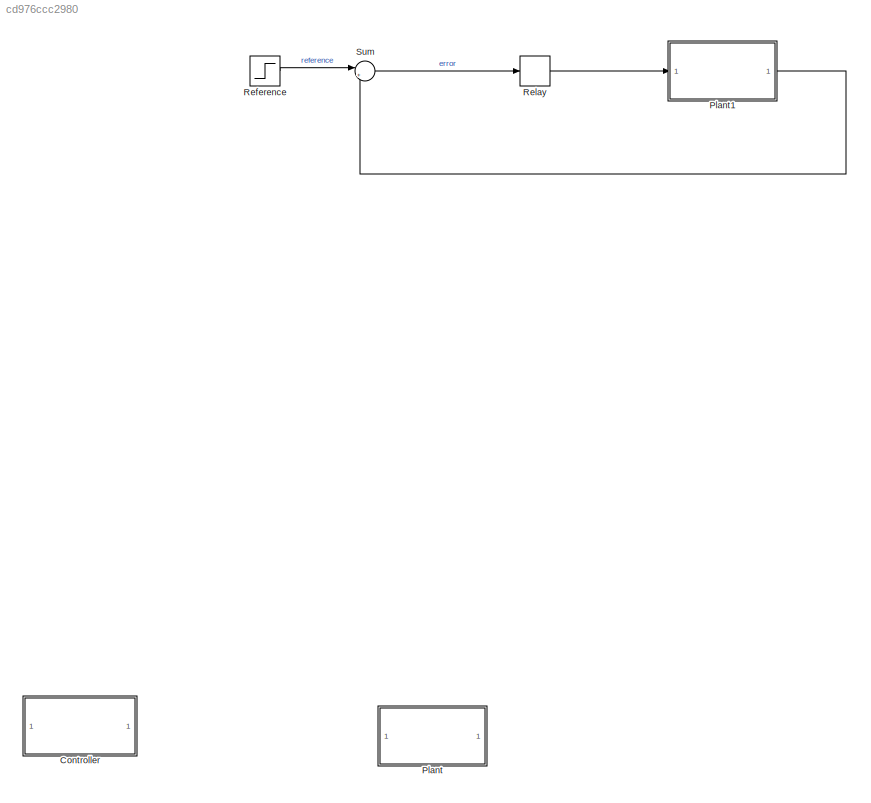
MODEL slx_cd976ccc2980
KIND model
CONFIG AbsTol = auto
CONFIG EnableMultiTasking = on
CONFIG FixedStep = auto
CONFIG MaxStep = 0.01
CONFIG MinStep = auto
CONFIG RelTol = 1e-4
CONFIG SampleTimeConstraint = Unconstrained
CONFIG Solver = VariableStepAuto
CONFIG SolverName = VariableStepAuto
CONFIG StartTime = 0.0
CONFIG StopTime = 50
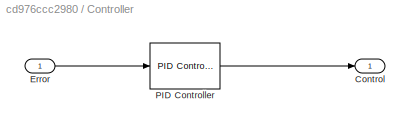
BLOCK [SubSystem] Controller
  Commented = on
  Ports = [1, 1]
  RequestExecContextInheritance = off
BLOCK [Outport] Controller/Control
  IconDisplay = Port number
BLOCK [Inport] Controller/Error
  IconDisplay = Port number
BLOCK [Reference] Controller/PID Controller  REF=simulink/Continuous/PID Controller
  Ports = [1, 1]
  SourceBlock = simulink/Continuous/PID Controller
  SourceProductBaseCode = SL
  SourceProductName = Simulink
  SourceType = PID 1dof
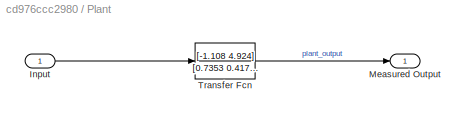
BLOCK [SubSystem] Plant
  Commented = on
  Ports = [1, 1]
  RequestExecContextInheritance = off
BLOCK [Inport] Plant/Input
  IconDisplay = Port number
BLOCK [Outport] Plant/Measured Output
  IconDisplay = Port number
BLOCK [TransferFcn] Plant/Transfer Fcn
  Denominator = [0.7353 0.417 4.727 4.444]
  Numerator = [-1.108 4.924]
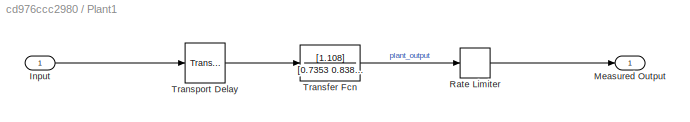
BLOCK [SubSystem] Plant1
  Ports = [1, 1]
  RequestExecContextInheritance = off
BLOCK [Inport] Plant1/Input
  IconDisplay = Port number
BLOCK [Outport] Plant1/Measured Output
  IconDisplay = Port number
BLOCK [RateLimiter] Plant1/Rate Limiter
  FallingSlewLimit = -0.657875
  RisingSlewLimit = 0.657875
  SampleTimeMode = inherited
BLOCK [TransferFcn] Plant1/Transfer Fcn
  Denominator = [0.7353 0.8386 1]
  Numerator = [1.108]
BLOCK [TransportDelay] Plant1/Transport Delay
  DelayTime = 0.3
  Ports = [1, 1]
BLOCK [Step] Reference
  SampleTime = 0
BLOCK [Relay] Relay
  InputProcessing = Elements as channels (sample based)
  OffOutputValue = 0.5
  OnOutputValue = 1.5
BLOCK [Sum] Sum
  IconShape = round
  InputSameDT = off
  Inputs = |+-
  OutDataTypeStr = Inherit: Inherit via internal rule
  Ports = [2, 1]
  SaturateOnIntegerOverflow = off
LINE Controller/Error:1 -> Controller/PID Controller:1
LINE Controller/PID Controller:1 -> Controller/Control:1
LINE Plant/Input:1 -> Plant/Transfer Fcn:1
LINE Plant/Transfer Fcn:1 -> Plant/Measured Output:1
LINE Plant1/Input:1 -> Plant1/Transport Delay:1
LINE Plant1/Rate Limiter:1 -> Plant1/Measured Output:1
LINE Plant1/Transfer Fcn:1 -> Plant1/Rate Limiter:1
LINE Plant1/Transport Delay:1 -> Plant1/Transfer Fcn:1
LINE Plant1:1 -> Sum:2
LINE Reference:1 -> Sum:1
LINE Relay:1 -> Plant1:1
LINE Sum:1 -> Relay:1
